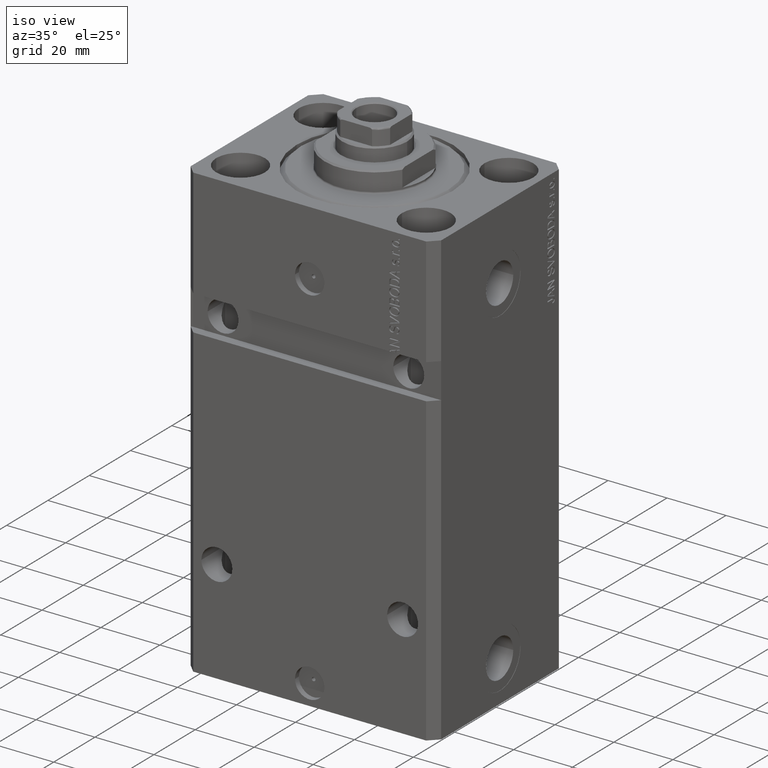
[diagram: clean part render]
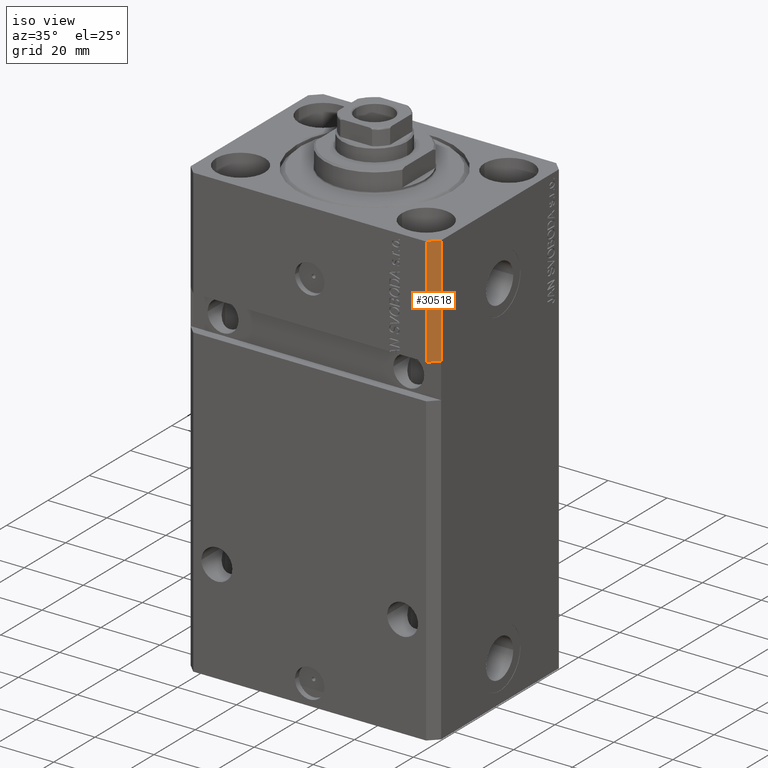
[diagram: same view with one face highlighted and labeled with its STEP entity id]
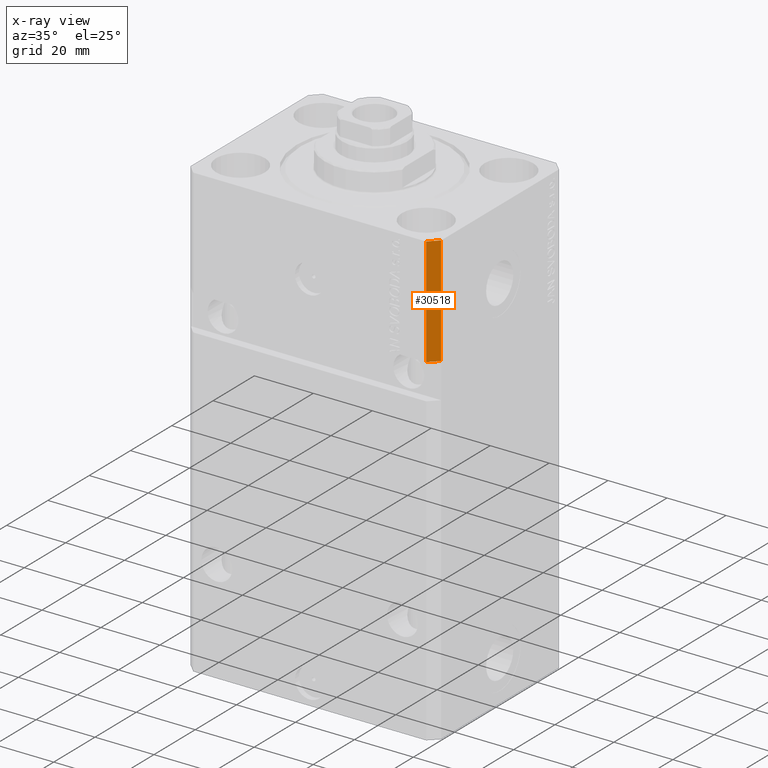
[diagram: x-ray of the same camera — body ghosted, the highlighted face saturated]
A machine part, iso view. The second image highlights one B-rep face of the part: STEP entity #30518.
The next image is the same camera in x-ray: the body ghosted, the highlighted face saturated — about 0% of this face is hidden behind the body in this view.
In plain terms, the highlighted planar face has unit normal (0.7071, -0.7071, 0).
Its self-contained STEP definition (entity closure, byte-faithful):
#1147 = VECTOR ( 'NONE', #35695, 1000.000000000000000 ) ;
#1218 = DIRECTION ( 'NONE',  ( 0.7071067811865483499, 0.7071067811865466846, 0.000000000000000000 ) ) ;
#1456 = CARTESIAN_POINT ( 'NONE',  ( 42.50000000000001421, -28.49999999999999289, -37.00000000000000000 ) ) ;
#3677 = AXIS2_PLACEMENT_3D ( 'NONE', #39232, #46127, #12905 ) ;
#5146 = CARTESIAN_POINT ( 'NONE',  ( 39.50000000000000711, -31.50000000000000000, 0.000000000000000000 ) ) ;
#5814 = VERTEX_POINT ( 'NONE', #15358 ) ;
#6418 = LINE ( 'NONE', #40135, #1147 ) ;
#10655 = VERTEX_POINT ( 'NONE', #1456 ) ;
#11441 = EDGE_CURVE ( 'NONE', #43654, #48294, #38604, .T. ) ;
#12905 = DIRECTION ( 'NONE',  ( 0.7071067811865483499, 0.7071067811865466846, 0.000000000000000000 ) ) ;
#13910 = VECTOR ( 'NONE', #14783, 1000.000000000000000 ) ;
#14440 = EDGE_CURVE ( 'NONE', #5814, #43654, #47914, .T. ) ;
#14783 = DIRECTION ( 'NONE',  ( 0.000000000000000000, 0.000000000000000000, 1.000000000000000000 ) ) ;
#15358 = CARTESIAN_POINT ( 'NONE',  ( 39.50000000000000711, -31.49999999999999289, -37.00000000000000000 ) ) ;
#17827 = VECTOR ( 'NONE', #1218, 1000.000000000000000 ) ;
#17998 = LINE ( 'NONE', #26332, #13910 ) ;
#20202 = CARTESIAN_POINT ( 'NONE',  ( 39.50000000000000711, -31.50000000000000000, 0.000000000000000000 ) ) ;
#24580 = ORIENTED_EDGE ( 'NONE', *, *, #30109, .T. ) ;
#25166 = EDGE_CURVE ( 'NONE', #10655, #5814, #6418, .T. ) ;
#25468 = CARTESIAN_POINT ( 'NONE',  ( 42.50000000000000711, -28.50000000000000355, 0.000000000000000000 ) ) ;
#26332 = CARTESIAN_POINT ( 'NONE',  ( 42.50000000000000711, -28.50000000000000355, -153.0000000000000000 ) ) ;
#26947 = PLANE ( 'NONE',  #3677 ) ;
#26981 = ORIENTED_EDGE ( 'NONE', *, *, #14440, .F. ) ;
#27177 = ORIENTED_EDGE ( 'NONE', *, *, #11441, .F. ) ;
#29698 = CARTESIAN_POINT ( 'NONE',  ( 39.50000000000000711, -31.50000000000000000, -153.0000000000000000 ) ) ;
#30109 = EDGE_CURVE ( 'NONE', #10655, #48294, #17998, .T. ) ;
#30518 = ADVANCED_FACE ( 'NONE', ( #34811 ), #26947, .T. ) ;
#34811 = FACE_OUTER_BOUND ( 'NONE', #41398, .T. ) ;
#35695 = DIRECTION ( 'NONE',  ( -0.7071067811865483499, -0.7071067811865466846, -5.772398745160942427E-17 ) ) ;
#38583 = VECTOR ( 'NONE', #40538, 1000.000000000000000 ) ;
#38604 = LINE ( 'NONE', #5146, #17827 ) ;
#39232 = CARTESIAN_POINT ( 'NONE',  ( 39.50000000000000711, -31.50000000000000000, -153.0000000000000000 ) ) ;
#40135 = CARTESIAN_POINT ( 'NONE',  ( 39.50000000000000000, -31.50000000000000711, -37.00000000000000711 ) ) ;
#40538 = DIRECTION ( 'NONE',  ( 0.000000000000000000, 0.000000000000000000, 1.000000000000000000 ) ) ;
#41398 = EDGE_LOOP ( 'NONE', ( #45500, #24580, #27177, #26981 ) ) ;
#43654 = VERTEX_POINT ( 'NONE', #20202 ) ;
#45500 = ORIENTED_EDGE ( 'NONE', *, *, #25166, .F. ) ;
#46127 = DIRECTION ( 'NONE',  ( 0.7071067811865466846, -0.7071067811865483499, 0.000000000000000000 ) ) ;
#47914 = LINE ( 'NONE', #29698, #38583 ) ;
#48294 = VERTEX_POINT ( 'NONE', #25468 ) ;